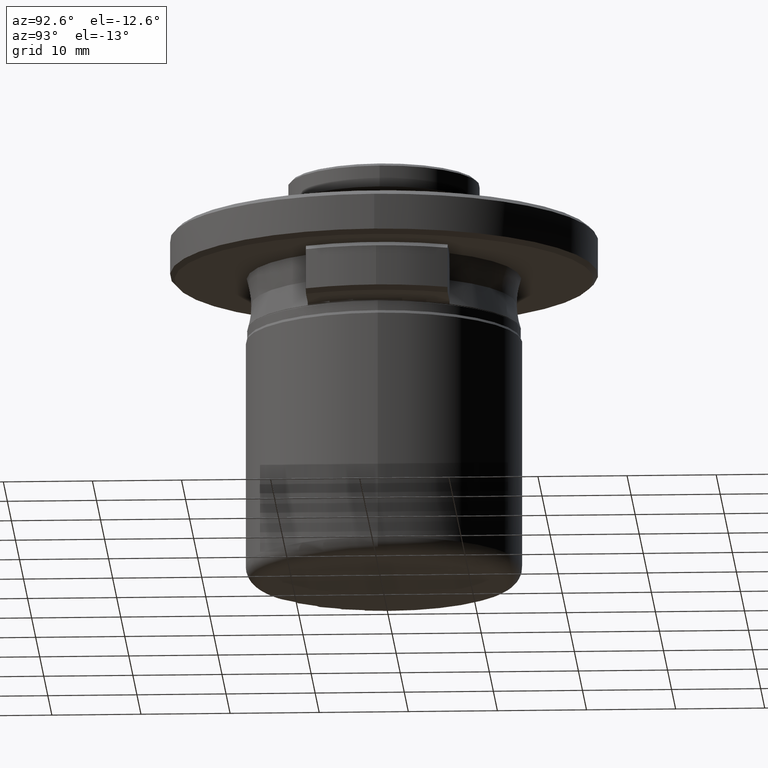
[diagram: clean part render]
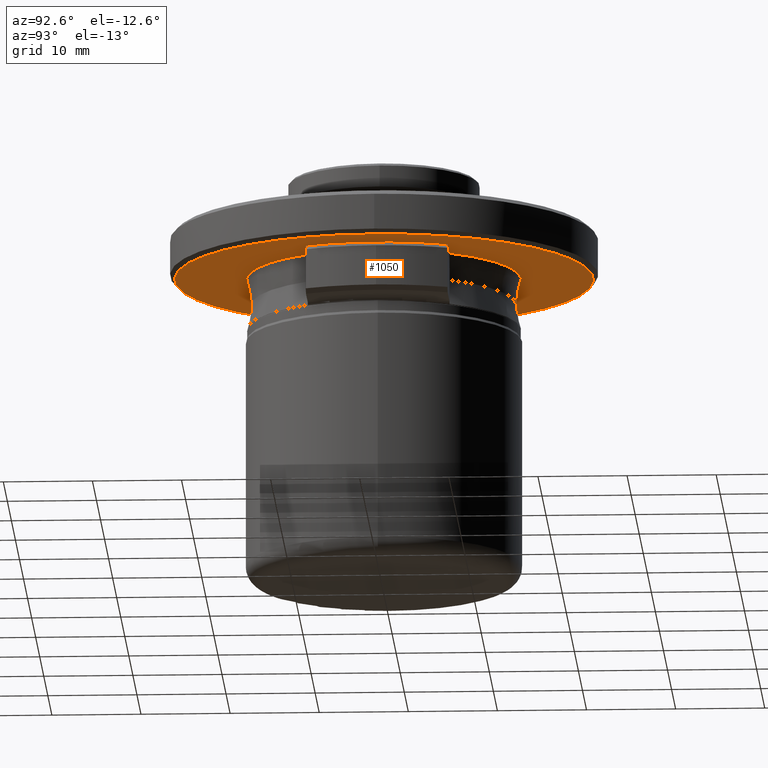
[diagram: same view with one face highlighted and labeled with its STEP entity id]
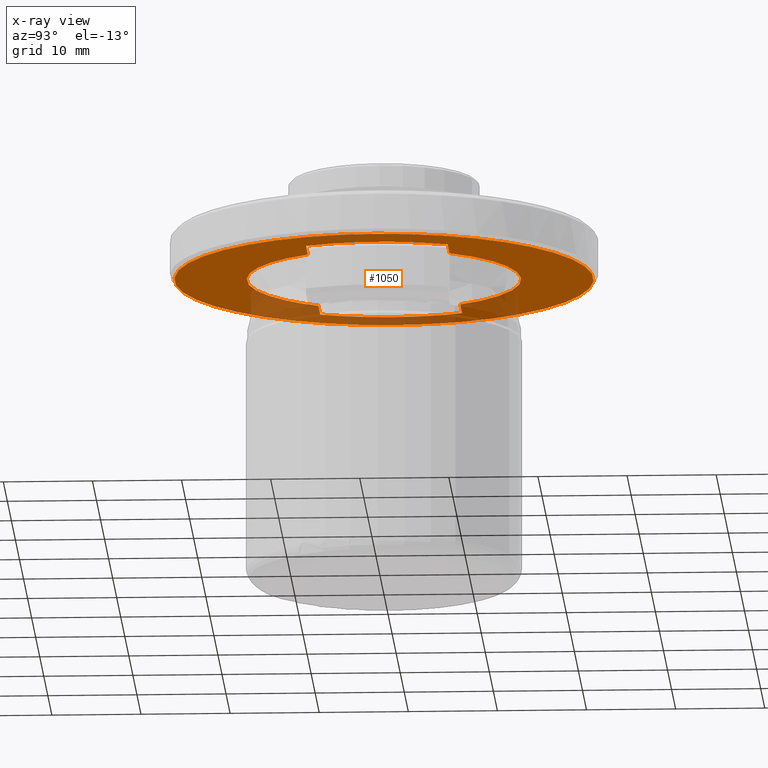
[diagram: x-ray of the same camera — body ghosted, the highlighted face saturated]
A machine part, auxiliary view. The second image highlights one B-rep face of the part: STEP entity #1050.
The next image is the same camera in x-ray: the body ghosted, the highlighted face saturated — about 25% of this face is hidden behind the body in this view.
In plain terms, the highlighted planar face has unit normal (0, 0, -1).
Its self-contained STEP definition (entity closure, byte-faithful):
#5 = CARTESIAN_POINT ( 'NONE',  ( 23.78199999999999600, -23.78199999999999600, 7.438485615000000300 ) ) ;
#46 = AXIS2_PLACEMENT_3D ( 'NONE', #5, #1043, #146 ) ;
#67 = DIRECTION ( 'NONE',  ( 1.000000000000000000, -0.0000000000000000000, -0.0000000000000000000 ) ) ;
#85 = ORIENTED_EDGE ( 'NONE', *, *, #1416, .T. ) ;
#93 = EDGE_CURVE ( 'NONE', #907, #1361, #1377, .T. ) ;
#146 = DIRECTION ( 'NONE',  ( -1.000000000000000000, 0.0000000000000000000, 0.0000000000000000000 ) ) ;
#147 = ORIENTED_EDGE ( 'NONE', *, *, #806, .T. ) ;
#183 = CARTESIAN_POINT ( 'NONE',  ( 17.69625666006662000, 7.950000010476004200, 7.438485615000001200 ) ) ;
#184 = ORIENTED_EDGE ( 'NONE', *, *, #698, .T. ) ;
#196 =( BOUNDED_CURVE ( )  B_SPLINE_CURVE ( 3, ( #370, #1384, #513, #1535 ),
 .UNSPECIFIED., .F., .F. ) 
 B_SPLINE_CURVE_WITH_KNOTS ( ( 4, 4 ),
 ( 0.0002294820974848767600, 0.03175008702777497300 ),
 .UNSPECIFIED. ) 
 CURVE ( )  GEOMETRIC_REPRESENTATION_ITEM ( )  RATIONAL_B_SPLINE_CURVE ( ( 0.9752203916884096800, 0.6606863898820863900, 0.6606863898822233900, 0.9752203916888209100 ) ) 
 REPRESENTATION_ITEM ( '' )  );
#213 = CARTESIAN_POINT ( 'NONE',  ( 0.0000000000000000000, 0.0000000000000000000, 7.438485615054234200 ) ) ;
#278 = CIRCLE ( 'NONE', #525, 23.50000000000004600 ) ;
#292 = CARTESIAN_POINT ( 'NONE',  ( 0.0000000000000000000, 0.0000000000000000000, 7.438485615000045600 ) ) ;
#295 = CARTESIAN_POINT ( 'NONE',  ( 0.0000000000000000000, 7.950000020952010100, 7.438485615000000300 ) ) ;
#318 = AXIS2_PLACEMENT_3D ( 'NONE', #1584, #556, #1007 ) ;
#321 = DIRECTION ( 'NONE',  ( 1.000000000000000000, -0.0000000000000000000, -0.0000000000000000000 ) ) ;
#322 = VERTEX_POINT ( 'NONE', #820 ) ;
#370 = CARTESIAN_POINT ( 'NONE',  ( 13.19009165178885300, -7.949999999890235500, 7.438485615054234200 ) ) ;
#372 = EDGE_CURVE ( 'NONE', #412, #1024, #998, .T. ) ;
#374 = DIRECTION ( 'NONE',  ( -0.0000000000000000000, -0.0000000000000000000, 1.000000000000000000 ) ) ;
#378 = DIRECTION ( 'NONE',  ( -1.000000000000000000, 0.0000000000000000000, 0.0000000000000000000 ) ) ;
#406 = EDGE_CURVE ( 'NONE', #1024, #322, #1381, .T. ) ;
#412 = VERTEX_POINT ( 'NONE', #1158 ) ;
#447 = EDGE_CURVE ( 'NONE', #1122, #1566, #1679, .T. ) ;
#452 = DIRECTION ( 'NONE',  ( 1.000000000000000000, 0.0000000000000000000, 0.0000000000000000000 ) ) ;
#513 = CARTESIAN_POINT ( 'NONE',  ( -6.489839730005988000, -19.06659584101090800, 7.438485615027141200 ) ) ;
#519 = AXIS2_PLACEMENT_3D ( 'NONE', #1245, #374, #1385 ) ;
#525 = AXIS2_PLACEMENT_3D ( 'NONE', #292, #1317, #452 ) ;
#556 = DIRECTION ( 'NONE',  ( -0.0000000000000000000, -0.0000000000000000000, 1.000000000000000000 ) ) ;
#615 = ORIENTED_EDGE ( 'NONE', *, *, #1676, .T. ) ;
#638 = ORIENTED_EDGE ( 'NONE', *, *, #991, .F. ) ;
#662 = CARTESIAN_POINT ( 'NONE',  ( -19.39999999999995600, 0.0000000000000000000, 7.438485615000045600 ) ) ;
#687 = DIRECTION ( 'NONE',  ( -0.0000000000000000000, -0.0000000000000000000, 1.000000000000000000 ) ) ;
#698 = EDGE_CURVE ( 'NONE', #1183, #1629, #278, .T. ) ;
#703 = LINE ( 'NONE', #1840, #1000 ) ;
#712 = AXIS2_PLACEMENT_3D ( 'NONE', #1564, #687, #1709 ) ;
#714 = DIRECTION ( 'NONE',  ( -0.0000000000000000000, 0.0000000000000000000, -1.000000000000000000 ) ) ;
#741 = EDGE_LOOP ( 'NONE', ( #184, #85 ) ) ;
#806 = EDGE_CURVE ( 'NONE', #322, #1166, #985, .T. ) ;
#820 = CARTESIAN_POINT ( 'NONE',  ( -17.69625666640348900, -7.950000000000000200, 7.438485615000023400 ) ) ;
#826 = CARTESIAN_POINT ( 'NONE',  ( -13.19009165193885900, 7.950000000000005500, 7.438485615027160800 ) ) ;
#878 = ORIENTED_EDGE ( 'NONE', *, *, #447, .T. ) ;
#899 = VECTOR ( 'NONE', #67, 1000.000000000000000 ) ;
#907 = VERTEX_POINT ( 'NONE', #183 ) ;
#948 = CARTESIAN_POINT ( 'NONE',  ( -23.50000000000004600, 2.908536147974966900E-015, 7.438485615000045600 ) ) ;
#980 = AXIS2_PLACEMENT_3D ( 'NONE', #213, #1251, #378 ) ;
#981 = CIRCLE ( 'NONE', #1592, 23.50000000000004600 ) ;
#982 = EDGE_CURVE ( 'NONE', #1122, #1166, #196, .T. ) ;
#983 = CARTESIAN_POINT ( 'NONE',  ( 13.19009165172269600, 7.950000000000000200, 7.438485615054234200 ) ) ;
#985 = LINE ( 'NONE', #1342, #1761 ) ;
#990 = VECTOR ( 'NONE', #1336, 1000.000000000000000 ) ;
#991 = EDGE_CURVE ( 'NONE', #1307, #1361, #1485, .T. ) ;
#998 = CIRCLE ( 'NONE', #318, 19.39999999999995600 ) ;
#1000 = VECTOR ( 'NONE', #1543, 1000.000000000000000 ) ;
#1001 = FACE_OUTER_BOUND ( 'NONE', #741, .T. ) ;
#1007 = DIRECTION ( 'NONE',  ( -1.000000000000000000, -1.776356839400250500E-015, 0.0000000000000000000 ) ) ;
#1024 = VERTEX_POINT ( 'NONE', #662 ) ;
#1043 = DIRECTION ( 'NONE',  ( 0.0000000000000000000, 0.0000000000000000000, -1.000000000000000000 ) ) ;
#1050 = ADVANCED_FACE ( 'NONE', ( #1437, #1001 ), #1771, .T. ) ;
#1080 = ORIENTED_EDGE ( 'NONE', *, *, #372, .T. ) ;
#1109 = CARTESIAN_POINT ( 'NONE',  ( 15.37753341250000000, -7.950000000000000200, 7.438485617001545000 ) ) ;
#1122 = VERTEX_POINT ( 'NONE', #1350 ) ;
#1158 = CARTESIAN_POINT ( 'NONE',  ( -17.69625667337379900, 7.950000020952010100, 7.438485615000000300 ) ) ;
#1166 = VERTEX_POINT ( 'NONE', #1220 ) ;
#1183 = VERTEX_POINT ( 'NONE', #1664 ) ;
#1211 = ORIENTED_EDGE ( 'NONE', *, *, #406, .T. ) ;
#1220 = CARTESIAN_POINT ( 'NONE',  ( -13.19009165193771700, -7.950000000000000200, 7.438485615024348800 ) ) ;
#1245 = CARTESIAN_POINT ( 'NONE',  ( 0.0000000000000000000, 0.0000000000000000000, 7.438485615000045600 ) ) ;
#1251 = DIRECTION ( 'NONE',  ( -0.0000000000000000000, -0.0000000000000000000, -1.000000000000000000 ) ) ;
#1307 = VERTEX_POINT ( 'NONE', #826 ) ;
#1317 = DIRECTION ( 'NONE',  ( -0.0000000000000000000, 0.0000000000000000000, -1.000000000000000000 ) ) ;
#1336 = DIRECTION ( 'NONE',  ( -1.000000000000000000, 0.0000000000000000000, 0.0000000000000000000 ) ) ;
#1342 = CARTESIAN_POINT ( 'NONE',  ( -15.37753341250000000, -7.950000000000000200, 7.438485617001545000 ) ) ;
#1346 = EDGE_CURVE ( 'NONE', #1566, #907, #1804, .T. ) ;
#1350 = CARTESIAN_POINT ( 'NONE',  ( 13.19009165178885300, -7.949999999890235500, 7.438485615054234200 ) ) ;
#1361 = VERTEX_POINT ( 'NONE', #983 ) ;
#1377 = LINE ( 'NONE', #295, #990 ) ;
#1381 = CIRCLE ( 'NONE', #519, 19.39999999999995600 ) ;
#1384 = CARTESIAN_POINT ( 'NONE',  ( 6.489839729990365000, -19.06659584101806000, 7.438485615027142100 ) ) ;
#1385 = DIRECTION ( 'NONE',  ( -1.000000000000000000, 0.0000000000000000000, 0.0000000000000000000 ) ) ;
#1416 = EDGE_CURVE ( 'NONE', #1629, #1183, #981, .T. ) ;
#1437 = FACE_BOUND ( 'NONE', #1899, .T. ) ;
#1485 = CIRCLE ( 'NONE', #980, 15.40068238036369400 ) ;
#1505 = ORIENTED_EDGE ( 'NONE', *, *, #1346, .T. ) ;
#1535 = CARTESIAN_POINT ( 'NONE',  ( -13.19009165193771700, -7.950000000000000200, 7.438485615024348800 ) ) ;
#1543 = DIRECTION ( 'NONE',  ( -1.000000000000000000, 0.0000000000000000000, 0.0000000000000000000 ) ) ;
#1564 = CARTESIAN_POINT ( 'NONE',  ( 0.0000000000000000000, 0.0000000000000000000, 7.438485615000000300 ) ) ;
#1566 = VERTEX_POINT ( 'NONE', #1617 ) ;
#1584 = CARTESIAN_POINT ( 'NONE',  ( 0.0000000000000000000, 0.0000000000000000000, 7.438485615000045600 ) ) ;
#1588 = CARTESIAN_POINT ( 'NONE',  ( 0.0000000000000000000, 0.0000000000000000000, 7.438485615000045600 ) ) ;
#1592 = AXIS2_PLACEMENT_3D ( 'NONE', #1588, #714, #1735 ) ;
#1617 = CARTESIAN_POINT ( 'NONE',  ( 17.69625666548679600, -7.950000000000000200, 7.438485615000001200 ) ) ;
#1629 = VERTEX_POINT ( 'NONE', #948 ) ;
#1664 = CARTESIAN_POINT ( 'NONE',  ( 23.50000000000004600, 0.0000000000000000000, 7.438485615000045600 ) ) ;
#1676 = EDGE_CURVE ( 'NONE', #1307, #412, #703, .T. ) ;
#1679 = LINE ( 'NONE', #1109, #899 ) ;
#1709 = DIRECTION ( 'NONE',  ( -1.000000000000000000, 0.0000000000000000000, 0.0000000000000000000 ) ) ;
#1735 = DIRECTION ( 'NONE',  ( 1.000000000000000000, 0.0000000000000000000, 0.0000000000000000000 ) ) ;
#1761 = VECTOR ( 'NONE', #321, 1000.000000000000000 ) ;
#1771 = PLANE ( 'NONE',  #46 ) ;
#1794 = ORIENTED_EDGE ( 'NONE', *, *, #93, .T. ) ;
#1804 = CIRCLE ( 'NONE', #712, 19.40000000000000200 ) ;
#1840 = CARTESIAN_POINT ( 'NONE',  ( 0.0000000000000000000, 7.950000020952010100, 7.438485615000000300 ) ) ;
#1899 = EDGE_LOOP ( 'NONE', ( #878, #1505, #1794, #638, #615, #1080, #1211, #147, #1919 ) ) ;
#1919 = ORIENTED_EDGE ( 'NONE', *, *, #982, .F. ) ;